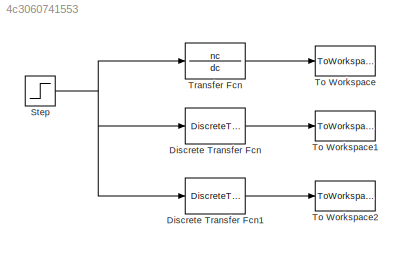
MODEL slx_4c3060741553
KIND model
CONFIG AbsTol = auto
CONFIG EnableMultiTasking = off
CONFIG FixedStep = auto
CONFIG MaxStep = auto
CONFIG MinStep = auto
CONFIG RelTol = 1e-3
CONFIG SampleTimeConstraint = Unconstrained
CONFIG Solver = VariableStepAuto
CONFIG SolverName = VariableStepAuto
CONFIG StartTime = 0.0
CONFIG StopTime = .02
BLOCK [DiscreteTransferFcn] Discrete Transfer Fcn
  Denominator = dd
  InputPortMap = u0
  Numerator = nd
  Ports = [1, 1]
  SampleTime = T1
BLOCK [DiscreteTransferFcn] Discrete Transfer Fcn1
  Denominator = dd2
  InputPortMap = u0
  Numerator = nd2
  Ports = [1, 1]
  SampleTime = T2
BLOCK [Step] Step
  SampleTime = 0
  Time = 0
BLOCK [ToWorkspace] To Workspace
  FixptAsFi = on
  MaxDataPoints = inf
  Ports = [1]
  SampleTime = -1
  Save2DSignal = 3-D array (concatenate along third dimension)
  SaveFormat = Timeseries
  VariableName = Voc
BLOCK [ToWorkspace] To Workspace1
  FixptAsFi = on
  MaxDataPoints = inf
  Ports = [1]
  SampleTime = -1
  Save2DSignal = 3-D array (concatenate along third dimension)
  SaveFormat = Timeseries
  VariableName = Vod1
BLOCK [ToWorkspace] To Workspace2
  FixptAsFi = on
  MaxDataPoints = inf
  Ports = [1]
  SampleTime = -1
  Save2DSignal = 3-D array (concatenate along third dimension)
  SaveFormat = Timeseries
  VariableName = Vod2
BLOCK [TransferFcn] Transfer Fcn
  Denominator = dc
  Numerator = nc
LINE Discrete Transfer Fcn1:1 -> To Workspace2:1
LINE Discrete Transfer Fcn:1 -> To Workspace1:1
NET Step:1 -> Discrete Transfer Fcn1:1, Discrete Transfer Fcn:1, Transfer Fcn:1
LINE Transfer Fcn:1 -> To Workspace:1
note: NET lines group one-source signal fan-out (src -> all destinations, sorted); 1:1 wires keep LINE
